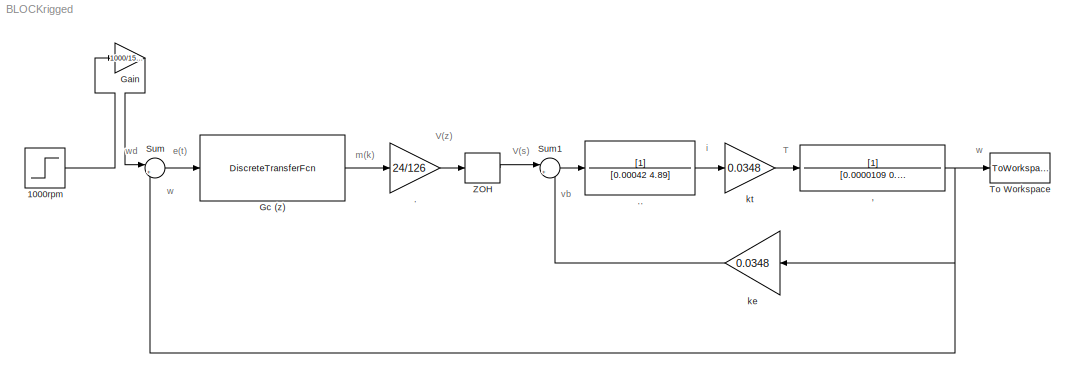
MODEL BLOCKrigged
KIND model
BLOCK [TransferFcn] ,
  Denominator = [0.0000109 0.0000464]
  SID = 18
BLOCK [Gain] .
  Gain = 24/126
  OutDataTypeStr = Inherit: Inherit via internal rule
  ParamDataTypeStr = Inherit: Inherit via internal rule
  SID = 10
  SampleTime = 0.004
  SaturateOnIntegerOverflow = off
BLOCK [TransferFcn] ..
  Denominator = [0.00042 4.89]
  SID = 14
BLOCK [Step] 1000rpm
  After = 2000
  SID = 35
  SampleTime = 0.004
  Time = 0
BLOCK [Gain] Gain
  Gain = 1000/150+0.06
  OutDataTypeStr = Inherit: Inherit via internal rule
  ParamDataTypeStr = Inherit: Inherit via internal rule
  SID = 52
  SaturateOnIntegerOverflow = off
BLOCK [DiscreteTransferFcn] Gc (z)
  Denominator = [1.1 -0.9580804 -0.0419195]
  InputPortMap = u0
  Numerator = [0.0019827 0.001814 0]
  Ports = [1, 1]
  SID = 4
  SampleTime = 0.004
  Tag = z
BLOCK [Sum] Sum
  IconShape = round
  InputSameDT = off
  Inputs = |+-
  OutDataTypeStr = Inherit: Inherit via internal rule
  Ports = [2, 1]
  SID = 7
  SampleTime = 0.004
  SaturateOnIntegerOverflow = off
BLOCK [Sum] Sum1
  IconShape = round
  InputSameDT = off
  Inputs = |+-
  OutDataTypeStr = Inherit: Inherit via internal rule
  Ports = [2, 1]
  SID = 12
  SampleTime = 0.004
  SaturateOnIntegerOverflow = off
BLOCK [ToWorkspace] To Workspace
  MaxDataPoints = inf
  Ports = [1]
  SID = 19
  SampleTime = 0.004
  VariableName = simout
BLOCK [ZeroOrderHold] ZOH
  SID = 11
  SampleTime = 0.004
BLOCK [Gain] ke
  Gain = 0.0348
  OutDataTypeStr = Inherit: Inherit via internal rule
  ParamDataTypeStr = Inherit: Inherit via internal rule
  SID = 20
  SampleTime = 0.004
  SaturateOnIntegerOverflow = off
BLOCK [Gain] kt
  Gain = 0.0348
  OutDataTypeStr = Inherit: Inherit via internal rule
  ParamDataTypeStr = Inherit: Inherit via internal rule
  SID = 15
  SampleTime = 0.004
  SaturateOnIntegerOverflow = off
ANNOTATION (root): T
ANNOTATION (root): V(s)
ANNOTATION (root): V(z)
ANNOTATION (root): e(t)
ANNOTATION (root): i
ANNOTATION (root): m(k)
ANNOTATION (root): vb
ANNOTATION (root): w
ANNOTATION (root): wd
NET ,:1 -> Sum:2, To Workspace:1, ke:1
LINE ..:1 -> kt:1
LINE .:1 -> ZOH:1
LINE 1000rpm:1 -> Gain:1
LINE Gain:1 -> Sum:1
LINE Gc (z):1 -> .:1
LINE Sum1:1 -> ..:1
LINE Sum:1 -> Gc (z):1
LINE ZOH:1 -> Sum1:1
LINE ke:1 -> Sum1:2
LINE kt:1 -> ,:1
note: NET lines group one-source signal fan-out (src -> all destinations, sorted); 1:1 wires keep LINE
